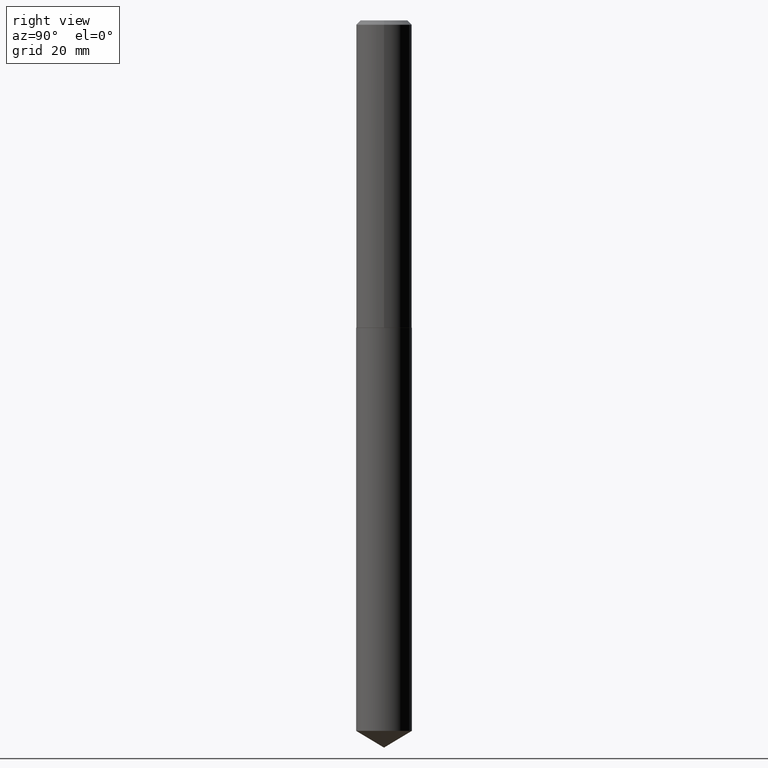
[diagram: clean part render]
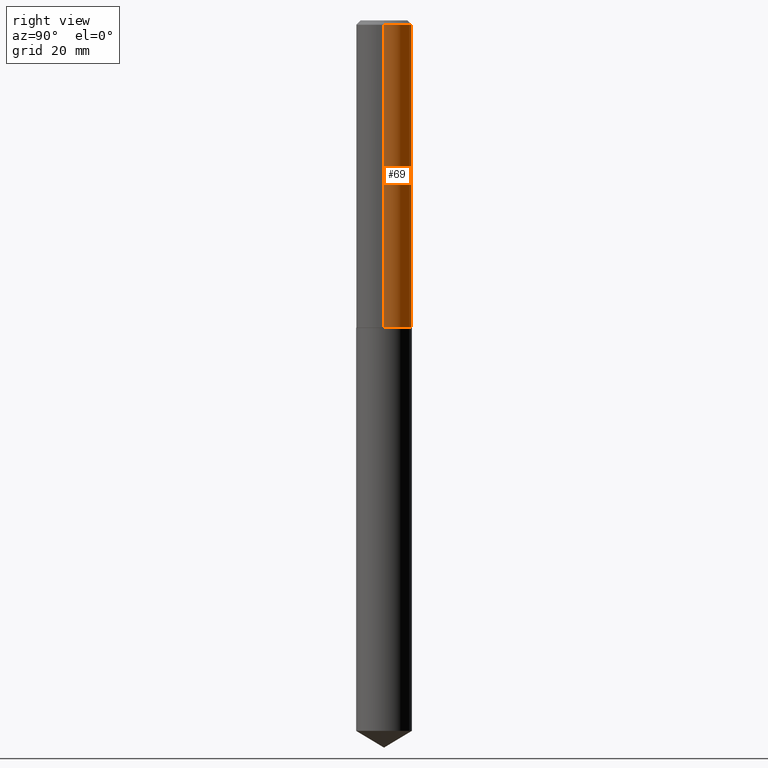
[diagram: same view with one face highlighted and labeled with its STEP entity id]
A machine part, right view. The second image highlights one B-rep face of the part: STEP entity #69.
In plain terms, the highlighted cylindrical surface (edge-blend (fillet) strip) has radius 5.1003 mm, axis along (-0, 0, 1).
Its self-contained STEP definition (entity closure, byte-faithful):
#3 = AXIS2_PLACEMENT_3D ( 'NONE', #147, #80, #146 ) ;
#18 = CARTESIAN_POINT ( 'NONE',  ( -0.2008000000000002838, -6.296736056248642724E-15, -2.212100000000000843 ) ) ;
#19 = ORIENTED_EDGE ( 'NONE', *, *, #189, .F. ) ;
#22 = ORIENTED_EDGE ( 'NONE', *, *, #117, .T. ) ;
#37 = CARTESIAN_POINT ( 'NONE',  ( 0.2008000000000001450, -1.402178905679403337E-15, 9.791362965798246718E-30 ) ) ;
#38 = CIRCLE ( 'NONE', #378, 0.2008000000000000063 ) ;
#42 = EDGE_CURVE ( 'NONE', #150, #188, #212, .T. ) ;
#50 = DIRECTION ( 'NONE',  ( 1.000000000000000000, -6.982962677686267499E-15, 0.000000000000000000 ) ) ;
#69 = ADVANCED_FACE ( 'NONE', ( #254 ), #319, .T. ) ;
#80 = DIRECTION ( 'NONE',  ( -2.445468806185136597E-29, 3.491481338843145583E-15, 1.000000000000000000 ) ) ;
#91 = CARTESIAN_POINT ( 'NONE',  ( 0.2008000000000000063, -1.511287697518251451E-15, -0.03125000000000022898 ) ) ;
#100 = DIRECTION ( 'NONE',  ( -2.445468806185136877E-29, 3.491481338843145188E-15, 1.000000000000000000 ) ) ;
#102 = CARTESIAN_POINT ( 'NONE',  ( -0.2008000000000001450, 1.426769813406282204E-15, -9.877221661231856994E-30 ) ) ;
#116 = CARTESIAN_POINT ( 'NONE',  ( 7.642090019328607041E-31, -1.091087918388490883E-16, -0.03125000000000022898 ) ) ;
#117 = EDGE_CURVE ( 'NONE', #132, #150, #127, .T. ) ;
#118 = CARTESIAN_POINT ( 'NONE',  ( 0.2008000000000002838, -9.125684775334329843E-15, -2.212100000000000843 ) ) ;
#127 = CIRCLE ( 'NONE', #336, 0.2008000000000002838 ) ;
#132 = VERTEX_POINT ( 'NONE', #118 ) ;
#137 = VECTOR ( 'NONE', #100, 39.37007874015748143 ) ;
#146 = DIRECTION ( 'NONE',  ( 1.000000000000000000, -6.982962677686266711E-15, 4.876176775795936353E-29 ) ) ;
#147 = CARTESIAN_POINT ( 'NONE',  ( 0.000000000000000000, 0.000000000000000000, 0.000000000000000000 ) ) ;
#150 = VERTEX_POINT ( 'NONE', #18 ) ;
#157 = ORIENTED_EDGE ( 'NONE', *, *, #205, .F. ) ;
#162 = VERTEX_POINT ( 'NONE', #91 ) ;
#169 = EDGE_LOOP ( 'NONE', ( #22, #233, #157, #19 ) ) ;
#188 = VERTEX_POINT ( 'NONE', #294 ) ;
#189 = EDGE_CURVE ( 'NONE', #132, #162, #287, .T. ) ;
#205 = EDGE_CURVE ( 'NONE', #162, #188, #38, .T. ) ;
#207 = VECTOR ( 'NONE', #332, 39.37007874015748143 ) ;
#212 = LINE ( 'NONE', #102, #207 ) ;
#233 = ORIENTED_EDGE ( 'NONE', *, *, #42, .T. ) ;
#254 = FACE_OUTER_BOUND ( 'NONE', #169, .T. ) ;
#258 = CARTESIAN_POINT ( 'NONE',  ( 5.409621546162143394E-29, -7.723505869654926111E-15, -2.212100000000000843 ) ) ;
#287 = LINE ( 'NONE', #37, #137 ) ;
#294 = CARTESIAN_POINT ( 'NONE',  ( -0.2008000000000000063, -2.489537517340604613E-15, -0.03125000000000022898 ) ) ;
#311 = DIRECTION ( 'NONE',  ( -2.445468806185136597E-29, 3.491481338843145583E-15, 1.000000000000000000 ) ) ;
#319 = CYLINDRICAL_SURFACE ( 'NONE', #3, 0.2008000000000001450 ) ;
#332 = DIRECTION ( 'NONE',  ( -2.445468806185136877E-29, 3.491481338843145188E-15, 1.000000000000000000 ) ) ;
#336 = AXIS2_PLACEMENT_3D ( 'NONE', #258, #311, #50 ) ;
#343 = DIRECTION ( 'NONE',  ( -2.445468806185136597E-29, 3.491481338843145583E-15, 1.000000000000000000 ) ) ;
#378 = AXIS2_PLACEMENT_3D ( 'NONE', #116, #343, #383 ) ;
#383 = DIRECTION ( 'NONE',  ( 1.000000000000000000, -6.982962677686266711E-15, 0.000000000000000000 ) ) ;